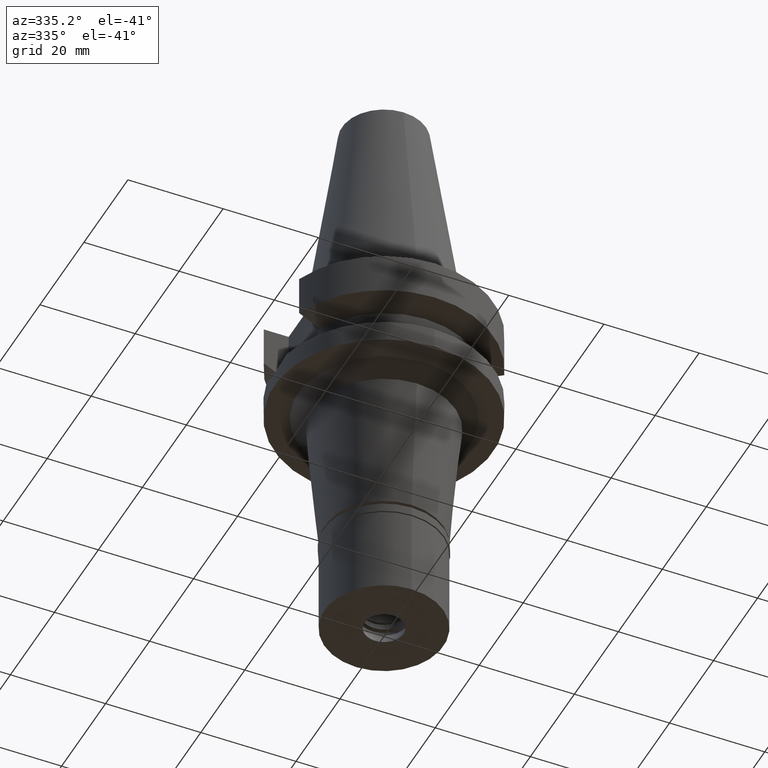
[diagram: clean part render]
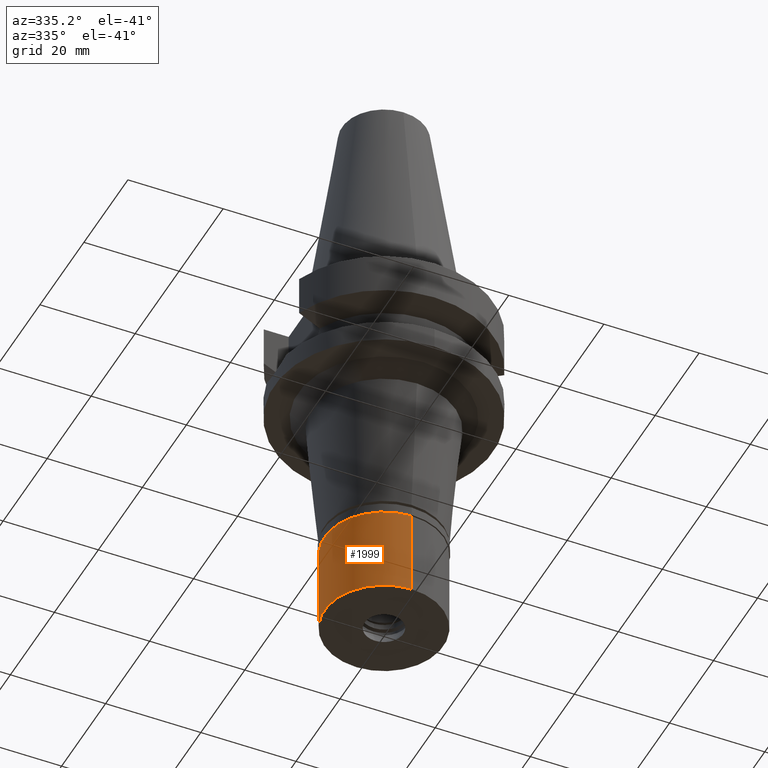
[diagram: same view with one face highlighted and labeled with its STEP entity id]
A machine part, auxiliary view. The second image highlights one B-rep face of the part: STEP entity #1999.
In plain terms, the highlighted cylindrical surface (partial cylindrical patch) has radius 12.5 mm, axis along (0, 0, -1).
Its self-contained STEP definition (entity closure, byte-faithful):
#26 = EDGE_CURVE ( 'NONE', #1495, #835, #2051, .T. ) ;
#110 = DIRECTION ( 'NONE',  ( 0.0000000000000000000, 0.0000000000000000000, -1.000000000000000000 ) ) ;
#178 = AXIS2_PLACEMENT_3D ( 'NONE', #1741, #546, #606 ) ;
#236 = AXIS2_PLACEMENT_3D ( 'NONE', #2453, #1478, #1983 ) ;
#291 = CIRCLE ( 'NONE', #236, 12.50000000000000000 ) ;
#320 = CARTESIAN_POINT ( 'NONE',  ( 0.0000000000000000000, 12.50000000000000000, -2.000000000000000000 ) ) ;
#478 = DIRECTION ( 'NONE',  ( 0.0000000000000000000, 0.0000000000000000000, -1.000000000000000000 ) ) ;
#546 = DIRECTION ( 'NONE',  ( 0.0000000000000000000, 0.0000000000000000000, -1.000000000000000000 ) ) ;
#606 = DIRECTION ( 'NONE',  ( 0.0000000000000000000, -1.000000000000000000, 0.0000000000000000000 ) ) ;
#657 = VECTOR ( 'NONE', #2104, 1000.000000000000000 ) ;
#684 = LINE ( 'NONE', #320, #1807 ) ;
#704 = CARTESIAN_POINT ( 'NONE',  ( 0.0000000000000000000, -12.50000000000000000, -2.000000000000000000 ) ) ;
#835 = VERTEX_POINT ( 'NONE', #2161 ) ;
#873 = ORIENTED_EDGE ( 'NONE', *, *, #26, .T. ) ;
#905 = LINE ( 'NONE', #704, #657 ) ;
#995 = EDGE_CURVE ( 'NONE', #835, #1883, #684, .T. ) ;
#1072 = FACE_OUTER_BOUND ( 'NONE', #2925, .T. ) ;
#1280 = ORIENTED_EDGE ( 'NONE', *, *, #2573, .F. ) ;
#1478 = DIRECTION ( 'NONE',  ( 0.0000000000000000000, 0.0000000000000000000, 1.000000000000000000 ) ) ;
#1495 = VERTEX_POINT ( 'NONE', #2640 ) ;
#1741 = CARTESIAN_POINT ( 'NONE',  ( 0.0000000000000000000, 0.0000000000000000000, 0.0000000000000000000 ) ) ;
#1807 = VECTOR ( 'NONE', #110, 1000.000000000000000 ) ;
#1871 = CARTESIAN_POINT ( 'NONE',  ( 0.0000000000000000000, 12.50000000000000000, -20.50000000000000000 ) ) ;
#1883 = VERTEX_POINT ( 'NONE', #1871 ) ;
#1942 = CYLINDRICAL_SURFACE ( 'NONE', #178, 12.50000000000000000 ) ;
#1983 = DIRECTION ( 'NONE',  ( 0.0000000000000000000, 1.000000000000000000, 0.0000000000000000000 ) ) ;
#1999 = ADVANCED_FACE ( 'NONE', ( #1072 ), #1942, .T. ) ;
#2051 = CIRCLE ( 'NONE', #2739, 12.50000000000000000 ) ;
#2104 = DIRECTION ( 'NONE',  ( 0.0000000000000000000, 0.0000000000000000000, -1.000000000000000000 ) ) ;
#2161 = CARTESIAN_POINT ( 'NONE',  ( 0.0000000000000000000, 12.50000000000000000, -2.000000000000000000 ) ) ;
#2312 = ORIENTED_EDGE ( 'NONE', *, *, #2708, .T. ) ;
#2334 = DIRECTION ( 'NONE',  ( 0.0000000000000000000, -1.000000000000000000, 0.0000000000000000000 ) ) ;
#2453 = CARTESIAN_POINT ( 'NONE',  ( 0.0000000000000000000, 0.0000000000000000000, -20.50000000000000000 ) ) ;
#2463 = VERTEX_POINT ( 'NONE', #2910 ) ;
#2573 = EDGE_CURVE ( 'NONE', #1495, #2463, #905, .T. ) ;
#2597 = CARTESIAN_POINT ( 'NONE',  ( 0.0000000000000000000, 0.0000000000000000000, -2.000000000000000000 ) ) ;
#2640 = CARTESIAN_POINT ( 'NONE',  ( 0.0000000000000000000, -12.50000000000000000, -2.000000000000000000 ) ) ;
#2708 = EDGE_CURVE ( 'NONE', #1883, #2463, #291, .T. ) ;
#2739 = AXIS2_PLACEMENT_3D ( 'NONE', #2597, #478, #2334 ) ;
#2767 = ORIENTED_EDGE ( 'NONE', *, *, #995, .T. ) ;
#2910 = CARTESIAN_POINT ( 'NONE',  ( 0.0000000000000000000, -12.50000000000000000, -20.50000000000000000 ) ) ;
#2925 = EDGE_LOOP ( 'NONE', ( #2312, #1280, #873, #2767 ) ) ;